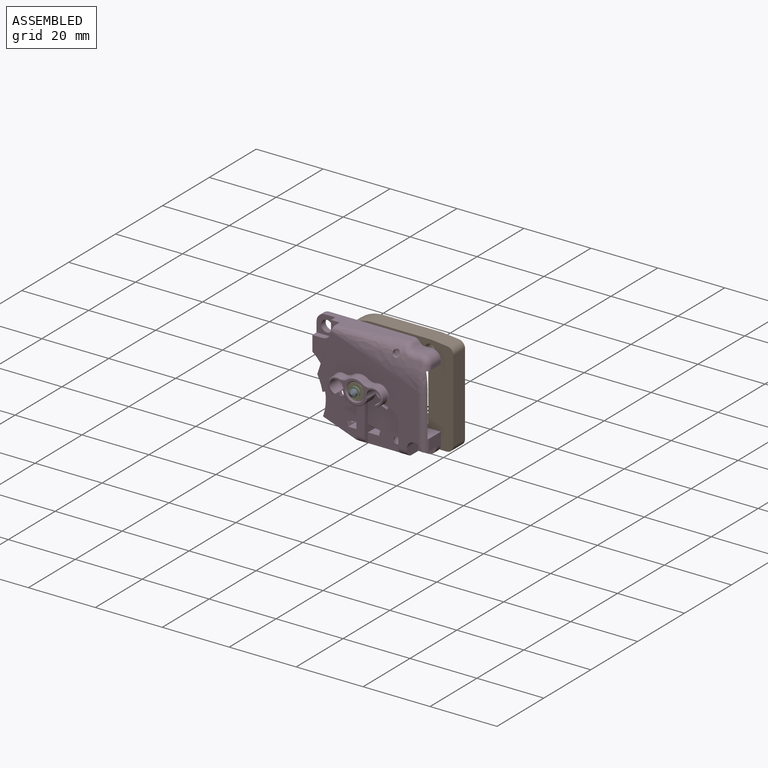
[diagram: assembled view]
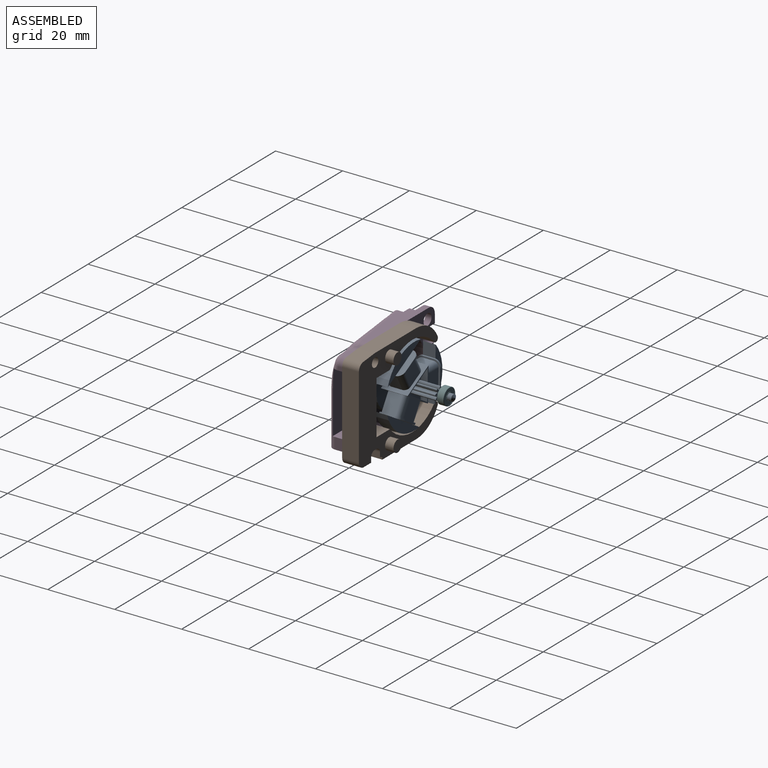
[diagram: assembled view, second angle]
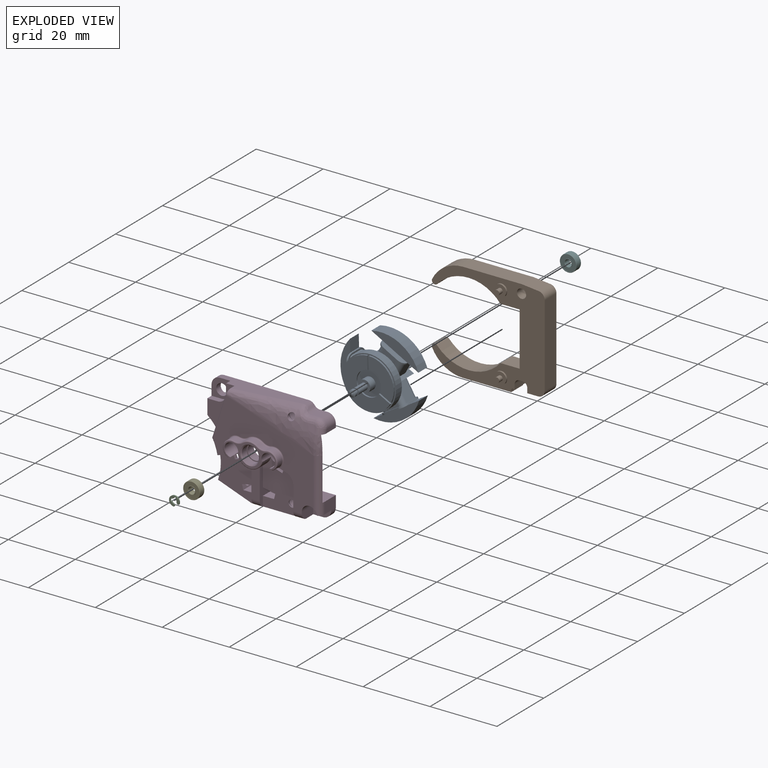
[diagram: exploded view]
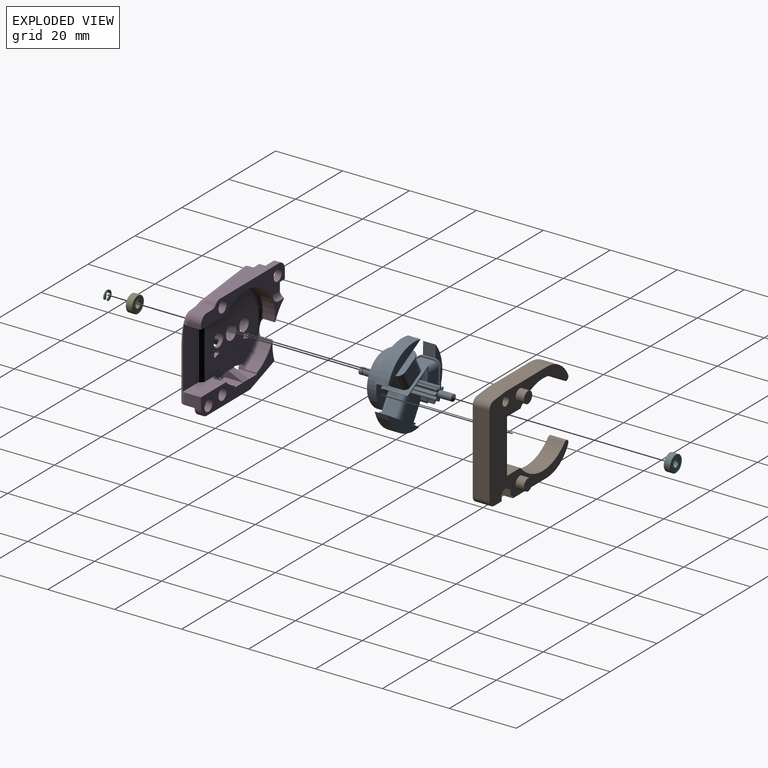
[diagram: exploded view, second angle]
ASSEMBLY  parts=6 mates=5
PART A: 141 faces, bbox 24x28.9x23.4 mm
  f0: cylinder r=1mm len=3.8mm, axis (0,1,0), area 23.9mm2, adj f65,f137
  f1: plane 10.2x8mm, normal (0,0,1), area 35.3mm2, adj f69,f108,f110,f111,f112,f113,f114,f115
  f2: plane 3.75x3.22mm, normal (0.87,0,0.5), area 13.9mm2, adj f4,f5,f6,f12,f13,f14
  f3: plane 3.75x3.22mm, normal (0.87,0,0.5), area 13.9mm2, adj f4,f5,f6,f8,f9,f10
  f4: plane 13.86x8.25mm, normal (0,1,0), area 33.5mm2, adj f2,f3,f6,f7
  f5: plane 13.86x8.25mm, normal (0,-1,0), area 33.5mm2, adj f2,f3,f6,f25
  f6: cylinder r=12mm len=13.86mm, axis (0,1,0), area 65.7mm2, adj f2,f3,f4,f5
  f7: plane 7.43x4.29mm, normal (-0.87,0,-0.5), area 13.8mm2, adj f4,f10,f11,f12
  f8: cylinder r=2mm len=2mm, axis (0.87,0,0.5), area 1.6mm2, adj f3,f9,f15,f16,f25
  f9: plane 3.35x0.43mm, normal (0.5,0,-0.87), area 1.7mm2, adj f3,f8,f10,f16
  f10: cylinder r=2mm len=2mm, axis (0.87,0,0.5), area 1.6mm2, adj f3,f7,f9,f11,f16
  f11: plane 4.23x2.73mm, normal (0,1,0), area 2.3mm2, adj f7,f10,f12,f16
  f12: cylinder r=2mm len=2mm, axis (0.87,0,0.5), area 1.6mm2, adj f2,f7,f11,f13,f16
  f13: plane 3.35x0.43mm, normal (-0.5,0,0.87), area 1.7mm2, adj f2,f12,f14,f16
  f14: cylinder r=2mm len=2mm, axis (0.87,0,0.5), area 1.6mm2, adj f2,f13,f15,f16,f25
  f15: plane 4.23x2.73mm, normal (0,-1,0), area 2.3mm2, adj f8,f14,f16,f25
  f16: plane 7.45x7.35mm, normal (0.87,0,0.5), area 13.4mm2, adj f8,f9,f10,f11,f12,f13,f14,f15
  f17: cylinder r=1.5mm len=5.51mm, axis (0.87,0,0.5), area 13mm2, adj f16,f18,f24,f111
  f18: plane 7.06x6.73mm, normal (0,1,0), area 25.3mm2, adj f16,f17,f19,f111
  f19: cylinder r=1.5mm len=5.51mm, axis (0.87,0,0.5), area 13mm2, adj f16,f18,f20,f111
  f20: plane 4.76x3.35mm, normal (-0.5,0,0.87), area 18.4mm2, adj f16,f19,f21,f111
  f21: cylinder r=1.5mm len=5.51mm, axis (0.87,0,0.5), area 13mm2, adj f16,f20,f22,f111
  f22: plane 7.06x6.73mm, normal (0,-1,0), area 25.3mm2, adj f16,f21,f23,f111
  f23: cylinder r=1.5mm len=5.51mm, axis (0.87,0,0.5), area 13mm2, adj f16,f22,f24,f111
  f24: plane 4.76x3.35mm, normal (0.5,0,-0.87), area 18.4mm2, adj f16,f17,f23,f111
  f25: plane 7.43x4.29mm, normal (-0.87,0,-0.5), area 13.8mm2, adj f5,f8,f14,f15
  f26: plane 11.03x7.25mm, normal (0,-1,0), area 43.2mm2, adj f27,f28,f29,f30
  f27: plane 3.88x0.5mm, normal (0,0,1), area 1.9mm2, adj f26,f28,f30,f67
  f28: cylinder r=7.5mm len=11.03mm, axis (0,1,0), area 7.6mm2, adj f26,f27,f29,f67
  f29: plane 3.36x1.94mm, normal (-0.87,0,0.5), area 1.9mm2, adj f26,f28,f30,f67
  f30: cylinder r=3.62mm len=5.21mm, axis (0,1,0), area 3.5mm2, adj f26,f27,f29,f67
  f31: plane 11.03x7.25mm, normal (0,-1,0), area 43.2mm2, adj f32,f33,f34,f35
  f32: plane 3.36x1.94mm, normal (-0.87,0,-0.5), area 1.9mm2, adj f31,f33,f35,f67
  f33: cylinder r=7.5mm len=11.03mm, axis (0,1,0), area 7.6mm2, adj f31,f32,f34,f67
  f34: plane 3.88x0.5mm, normal (0,0,-1), area 1.9mm2, adj f31,f33,f35,f67
  f35: cylinder r=3.62mm len=5.21mm, axis (0,1,0), area 3.5mm2, adj f31,f32,f34,f67
  f36: plane 12.73x5.48mm, normal (0,-1,0), area 43.2mm2, adj f37,f38,f39,f40
  f37: plane 3.36x1.94mm, normal (0.87,0,-0.5), area 1.9mm2, adj f36,f38,f40,f67
  f38: cylinder r=7.5mm len=12.73mm, axis (0,1,0), area 7.6mm2, adj f36,f37,f39,f67
  f39: plane 3.36x1.94mm, normal (0.87,0,0.5), area 1.9mm2, adj f36,f38,f40,f67
  f40: cylinder r=3.62mm len=6.01mm, axis (0,1,0), area 3.5mm2, adj f36,f37,f39,f67
  f41: plane 3.75x3.22mm, normal (-0.87,0,0.5), area 13.9mm2, adj f43,f44,f45,f51,f52,f53
  f42: plane 3.75x3.22mm, normal (-0.87,0,0.5), area 13.9mm2, adj f43,f44,f45,f47,f48,f49
  f43: plane 13.86x8.25mm, normal (0,1,0), area 33.5mm2, adj f41,f42,f45,f46
  f44: plane 13.86x8.25mm, normal (0,-1,0), area 33.5mm2, adj f41,f42,f45,f64
  f45: cylinder r=12mm len=13.86mm, axis (0,1,0), area 65.7mm2, adj f41,f42,f43,f44
  f46: plane 7.43x4.29mm, normal (0.87,0,-0.5), area 13.8mm2, adj f43,f49,f50,f51
  f47: cylinder r=2mm len=2mm, axis (-0.87,0,0.5), area 1.6mm2, adj f42,f48,f54,f55,f64
  f48: plane 3.35x0.43mm, normal (0.5,0,0.87), area 1.7mm2, adj f42,f47,f49,f55
  f49: cylinder r=2mm len=2mm, axis (-0.87,0,0.5), area 1.6mm2, adj f42,f46,f48,f50,f55
  f50: plane 4.23x2.73mm, normal (0,1,0), area 2.3mm2, adj f46,f49,f51,f55
  f51: cylinder r=2mm len=2mm, axis (-0.87,0,0.5), area 1.6mm2, adj f41,f46,f50,f52,f55
  f52: plane 3.35x0.43mm, normal (-0.5,0,-0.87), area 1.7mm2, adj f41,f51,f53,f55
  f53: cylinder r=2mm len=2mm, axis (-0.87,0,0.5), area 1.6mm2, adj f41,f52,f54,f55,f64
  f54: plane 4.23x2.73mm, normal (0,-1,0), area 2.3mm2, adj f47,f53,f55,f64
  f55: plane 7.45x7.35mm, normal (-0.87,0,0.5), area 13.4mm2, adj f47,f48,f49,f50,f51,f52,f53,f54
  f56: cylinder r=1.5mm len=5.51mm, axis (-0.87,0,0.5), area 13mm2, adj f55,f57,f63,f110
  f57: plane 7.06x6.73mm, normal (0,1,0), area 25.3mm2, adj f55,f56,f58,f110
  f58: cylinder r=1.5mm len=5.51mm, axis (-0.87,0,0.5), area 13mm2, adj f55,f57,f59,f110
  f59: plane 4.76x3.35mm, normal (-0.5,0,-0.87), area 18.4mm2, adj f55,f58,f60,f110
  f60: cylinder r=1.5mm len=5.51mm, axis (-0.87,0,0.5), area 13mm2, adj f55,f59,f61,f110
  f61: plane 7.06x6.73mm, normal (0,-1,0), area 25.3mm2, adj f55,f60,f62,f110
  f62: cylinder r=1.5mm len=5.51mm, axis (-0.87,0,0.5), area 13mm2, adj f55,f61,f63,f110
  f63: plane 4.76x3.35mm, normal (0.5,0,0.87), area 18.4mm2, adj f55,f56,f62,f110
  f64: plane 7.43x4.29mm, normal (0.87,0,-0.5), area 13.8mm2, adj f44,f47,f53,f54
  f65: plane 3.55x3.55mm, normal (0,-1,0), area 6.8mm2, adj f0,f66
  f66: cylinder r=1.78mm len=3.55mm, axis (0,1,0), area 25.7mm2, adj f65,f67
  f67: plane 15.7x15.7mm, normal (0,-1,0), area 54.1mm2, adj f27,f28,f29,f30,f32,f33,f34,f35
  f68: cylinder r=7.85mm len=15.7mm, axis (0,1,0), area 123.3mm2, adj f67,f69
  f69: plane 15.7x15.7mm, normal (0,1,0), area 148.5mm2, adj f1,f68,f110,f111
  f70: cone r=1mm half-angle=60deg, axis (0,-1,0), area 3.6mm2, adj f71
  f71: cylinder r=1mm len=4.12mm, axis (0,-1,0), area 25.9mm2, adj f70,f72
  f72: plane 3.78x3.78mm, normal (0,1,0), area 5.3mm2, adj f71,f73,f74,f75,f76,f77,f78,f79
  f73: plane 7.5x0.21mm, normal (0.71,0,0.71), area 2.3mm2, adj f72,f74,f104,f109
  f74: cylinder r=1mm len=7.5mm, axis (0,-1,0), area 6.3mm2, adj f72,f73,f75,f109
  f75: cylinder r=2mm len=7.5mm, axis (0,-1,0), area 1.9mm2, adj f72,f74,f76,f109
  f76: cylinder r=1mm len=7.5mm, axis (0,-1,0), area 6.3mm2, adj f72,f75,f77,f109
  f77: plane 7.5x0.3mm, normal (0,0,1), area 2.2mm2, adj f72,f76,f78,f109
  f78: cylinder r=1mm len=7.5mm, axis (0,-1,0), area 6.3mm2, adj f72,f77,f79,f109
  f79: cylinder r=2mm len=7.5mm, axis (0,-1,0), area 1.9mm2, adj f72,f78,f80,f109
  f80: cylinder r=1mm len=7.5mm, axis (0,-1,0), area 6.3mm2, adj f72,f79,f81,f109
  f81: plane 7.5x0.21mm, normal (-0.71,0,0.71), area 2.3mm2, adj f72,f80,f82,f109
  f82: cylinder r=1mm len=7.5mm, axis (0,-1,0), area 6.3mm2, adj f72,f81,f83,f109
  f83: cylinder r=2mm len=7.5mm, axis (0,-1,0), area 1.9mm2, adj f72,f82,f84,f109
  f84: cylinder r=1mm len=7.5mm, axis (0,-1,0), area 6.3mm2, adj f72,f83,f85,f109
  f85: plane 7.5x0.3mm, normal (-1,0,0), area 2.2mm2, adj f72,f84,f86,f109
  f86: cylinder r=1mm len=7.5mm, axis (0,-1,0), area 6.3mm2, adj f72,f85,f87,f109
  f87: cylinder r=2mm len=7.5mm, axis (0,-1,0), area 1.9mm2, adj f72,f86,f88,f109
  f88: cylinder r=1mm len=7.5mm, axis (0,-1,0), area 6.3mm2, adj f72,f87,f89,f109
  f89: plane 7.5x0.21mm, normal (-0.71,0,-0.71), area 2.3mm2, adj f72,f88,f90,f109
  f90: cylinder r=1mm len=7.5mm, axis (0,-1,0), area 6.3mm2, adj f72,f89,f91,f109
  f91: cylinder r=2mm len=7.5mm, axis (0,-1,0), area 1.9mm2, adj f72,f90,f92,f109
  f92: cylinder r=1mm len=7.5mm, axis (0,-1,0), area 6.3mm2, adj f72,f91,f93,f109
  f93: plane 7.5x0.3mm, normal (0,0,-1), area 2.2mm2, adj f72,f92,f94,f109
  f94: cylinder r=1mm len=7.5mm, axis (0,-1,0), area 6.3mm2, adj f72,f93,f95,f109
  f95: cylinder r=2mm len=7.5mm, axis (0,-1,0), area 1.9mm2, adj f72,f94,f96,f109
  f96: cylinder r=1mm len=7.5mm, axis (0,-1,0), area 6.3mm2, adj f72,f95,f97,f109
  f97: plane 7.5x0.21mm, normal (0.71,0,-0.71), area 2.3mm2, adj f72,f96,f98,f109
  f98: cylinder r=1mm len=7.5mm, axis (0,-1,0), area 6.3mm2, adj f72,f97,f99,f109
  f99: cylinder r=2mm len=7.5mm, axis (0,-1,0), area 1.9mm2, adj f72,f98,f100,f109
  f100: cylinder r=1mm len=7.5mm, axis (0,-1,0), area 6.3mm2, adj f72,f99,f101,f109
  f101: plane 7.5x0.3mm, normal (1,0,0), area 2.2mm2, adj f72,f100,f102,f109
  f102: cylinder r=1mm len=7.5mm, axis (0,-1,0), area 6.3mm2, adj f72,f101,f103,f109
  f103: cylinder r=2mm len=7.5mm, axis (0,-1,0), area 1.9mm2, adj f72,f102,f104,f109
  f104: cylinder r=1mm len=7.5mm, axis (0,-1,0), area 6.3mm2, adj f72,f73,f103,f109
  f105: plane 7.93x4.58mm, normal (0.87,0,0.5), area 18.3mm2, adj f106,f107,f108,f109
  f106: plane 7.93x4.58mm, normal (-0.87,0,0.5), area 18.3mm2, adj f105,f107,f108,f109
  f107: plane 9.16x2mm, normal (0,0,-1), area 18.3mm2, adj f105,f106,f108,f109
  f108: plane 10.2x8.83mm, normal (0,1,0), area 8.7mm2, adj f1,f105,f106,f107,f110,f111
  f109: plane 9.16x7.93mm, normal (0,1,0), area 27.9mm2, adj f73,f74,f75,f76,f77,f78,f79,f80
  f110: plane 8.83x8mm, normal (0.87,0,-0.5), area 35.3mm2, adj f1,f56,f57,f58,f59,f60,f61,f62
  f111: plane 8.83x8mm, normal (-0.87,0,-0.5), area 35.3mm2, adj f1,f17,f18,f19,f20,f21,f22,f23
  f112: plane 5.5x3.35mm, normal (-1,0,0), area 18.4mm2, adj f1,f113,f119,f135
  f113: cylinder r=1.5mm len=5.5mm, axis (0,0,-1), area 13mm2, adj f1,f112,f114,f135
  f114: plane 5.5x4.6mm, normal (0,-1,0), area 25.3mm2, adj f1,f113,f115,f135
  f115: cylinder r=1.5mm len=5.5mm, axis (0,0,-1), area 13mm2, adj f1,f114,f116,f135
  f116: plane 5.5x3.35mm, normal (1,0,0), area 18.4mm2, adj f1,f115,f117,f135
  f117: cylinder r=1.5mm len=5.5mm, axis (0,0,-1), area 13mm2, adj f1,f116,f118,f135
  f118: plane 5.5x4.6mm, normal (0,1,0), area 25.3mm2, adj f1,f117,f119,f135
  f119: cylinder r=1.5mm len=5.5mm, axis (0,0,-1), area 13mm2, adj f1,f112,f118,f135
  f120: plane 16x3.06mm, normal (0,1,0), area 33.5mm2, adj f121,f123,f124,f125
  f121: cylinder r=12mm len=16mm, axis (0,1,0), area 65.7mm2, adj f120,f122,f123,f125
  f122: plane 16x3.06mm, normal (0,-1,0), area 33.5mm2, adj f121,f123,f125,f126
  f123: plane 3.75x3.71mm, normal (0,0,-1), area 13.9mm2, adj f120,f121,f122,f127,f128,f129
  f124: plane 8.58x1.8mm, normal (0,0,1), area 13.8mm2, adj f120,f129,f130,f131
  f125: plane 3.75x3.71mm, normal (0,0,-1), area 13.9mm2, adj f120,f121,f122,f131,f132,f133
  f126: plane 8.58x1.8mm, normal (0,0,1), area 13.8mm2, adj f122,f127,f133,f134
  f127: cylinder r=2mm len=2mm, axis (0,0,-1), area 1.6mm2, adj f123,f126,f128,f134,f135
  f128: plane 3.35x0.5mm, normal (1,0,0), area 1.7mm2, adj f123,f127,f129,f135
  f129: cylinder r=2mm len=2mm, axis (0,0,-1), area 1.6mm2, adj f123,f124,f128,f130,f135
  f130: plane 4.6x0.5mm, normal (0,1,0), area 2.3mm2, adj f124,f129,f131,f135
  f131: cylinder r=2mm len=2mm, axis (0,0,-1), area 1.6mm2, adj f124,f125,f130,f132,f135
  f132: plane 3.35x0.5mm, normal (-1,0,0), area 1.7mm2, adj f125,f131,f133,f135
  f133: cylinder r=2mm len=2mm, axis (0,0,-1), area 1.6mm2, adj f125,f126,f132,f134,f135
  f134: plane 4.6x0.5mm, normal (0,-1,0), area 2.3mm2, adj f126,f127,f133,f135
  f135: plane 8.6x7.35mm, normal (0,0,-1), area 13.4mm2, adj f112,f113,f114,f115,f116,f117,f118,f119
  f136: plane 2x2mm, normal (0,1,0), area 1.4mm2, adj f138,f140
  f137: plane 2x2mm, normal (0,-1,0), area 1.4mm2, adj f0,f138
  f138: cylinder r=0.75mm len=1.5mm, axis (0,1,0), area 2.4mm2, adj f136,f137
  f139: cone r=1mm half-angle=60deg, axis (0,1,0), area 3.6mm2, adj f140
  f140: cylinder r=1mm len=2mm, axis (0,1,0), area 6.1mm2, adj f136,f139
PART B: 40 faces, bbox 33.7x9.5x30 mm
  f0: plane 5.73x5mm, normal (0,0,-1), area 28.6mm2, adj f1,f24,f26,f27
  f1: plane 16x5mm, normal (-1,0,0), area 80mm2, adj f0,f2,f26,f27
  f2: plane 5.73x5mm, normal (0,0,1), area 28.6mm2, adj f1,f3,f26,f27
  f3: cylinder r=12.48mm len=18.91mm, axis (0,1,0), area 107.3mm2, adj f2,f4,f26,f27
  f4: cylinder r=0.9mm len=5mm, axis (0,1,0), area 12.9mm2, adj f3,f5,f26,f27
  f5: cylinder r=10.24mm len=9.18mm, axis (0,1,0), area 56.9mm2, adj f4,f6,f26,f27
  f6: plane 14.43x5mm, normal (0,0,-1), area 72.2mm2, adj f5,f7,f26,f27
  f7: plane 5x0.5mm, normal (1,0,0), area 2.5mm2, adj f6,f8,f26,f27
  f8: cylinder r=0.5mm len=5mm, axis (0,1,0), area 3.9mm2, adj f7,f9,f26,f27
  f9: plane 5x0.5mm, normal (0,0,-1), area 2.5mm2, adj f8,f10,f26,f27
  f10: plane 5x1.35mm, normal (1,0,0), area 6.8mm2, adj f9,f11,f26,f27
  f11: cylinder r=1.5mm len=5mm, axis (0,1,0), area 11.8mm2, adj f10,f12,f26,f27
  f12: plane 5x0.8mm, normal (0,0,-1), area 4mm2, adj f11,f13,f26,f27
  f13: cylinder r=1.5mm len=5mm, axis (0,1,0), area 11.8mm2, adj f12,f14,f26,f27
  f14: plane 5x1.35mm, normal (-1,0,0), area 6.8mm2, adj f13,f15,f26,f27
  f15: plane 5x3.2mm, normal (0,0,-1), area 16mm2, adj f14,f16,f26,f27
  f16: cylinder r=2mm len=5mm, axis (0,1,0), area 15.7mm2, adj f15,f17,f26,f27
  f17: plane 24.5x5mm, normal (1,0,0), area 122.5mm2, adj f16,f18,f26,f27
  f18: cylinder r=2mm len=5mm, axis (0,1,0), area 14.7mm2, adj f17,f19,f26,f27
  f19: plane 5x4.87mm, normal (0.1,0,0.99), area 24.5mm2, adj f18,f20,f26,f27
  f20: cylinder r=2.6mm len=5mm, axis (0,1,0), area 1.3mm2, adj f19,f21,f26,f27
  f21: plane 17.5x5mm, normal (0,0,1), area 87.5mm2, adj f20,f22,f26,f27
  f22: cylinder r=10.24mm len=9.18mm, axis (0,1,0), area 56.9mm2, adj f21,f23,f26,f27
  f23: cylinder r=0.9mm len=5mm, axis (0,1,0), area 12.9mm2, adj f22,f24,f26,f27
  f24: cylinder r=12.48mm len=18.91mm, axis (0,1,0), area 107.3mm2, adj f0,f23,f26,f27
  f25: cylinder r=1.38mm len=5mm, axis (0,1,0), area 43.2mm2, adj f26,f27
  f26: plane 33.7x30mm, normal (0,-1,0), area 392mm2, adj f0,f1,f2,f3,f4,f5,f6,f7
  f27: plane 33.7x30mm, normal (0,1,0), area 392mm2, adj f0,f1,f2,f3,f4,f5,f6,f7
  f28: plane 3.5x3.5mm, normal (0,1,0), area 9.6mm2, adj f29
  f29: cylinder r=1.75mm len=3.5mm, axis (0,1,0), area 27.5mm2, adj f27,f28
  f30: cylinder r=1.75mm len=3.5mm, axis (0,1,0), area 5.5mm2, adj f26,f31
  f31: plane 3.5x3.5mm, normal (0,-1,0), area 7.9mm2, adj f30,f36
  f32: plane 3.5x3.5mm, normal (0,1,0), area 9.6mm2, adj f33
  f33: cylinder r=1.75mm len=3.5mm, axis (0,1,0), area 27.5mm2, adj f27,f32
  f34: cylinder r=1.75mm len=3.5mm, axis (0,1,0), area 5.5mm2, adj f26,f35
  f35: plane 3.5x3.5mm, normal (0,-1,0), area 7.9mm2, adj f34,f38
  f36: cylinder r=0.75mm len=1.5mm, axis (0,1,0), area 7.1mm2, adj f31,f37
  f37: plane 1.5x1.5mm, normal (0,-1,0), area 1.8mm2, adj f36
  f38: cylinder r=0.75mm len=1.5mm, axis (0,1,0), area 7.1mm2, adj f35,f39
  f39: plane 1.5x1.5mm, normal (0,-1,0), area 1.8mm2, adj f38
PART C: 10 faces, bbox 3x2.7x0.4 mm
  f0: cylinder r=0.48mm len=0.79mm, axis (0,0,-1), area 0.4mm2, adj f1,f7,f8,f9
  f1: cylinder r=1.5mm len=3mm, axis (0,0,-1), area 3.1mm2, adj f0,f2,f8,f9
  f2: cylinder r=0.48mm len=0.79mm, axis (0,0,-1), area 0.4mm2, adj f1,f3,f8,f9
  f3: cylinder r=0.75mm len=0.54mm, axis (0,0,-1), area 0.2mm2, adj f2,f4,f8,f9
  f4: cylinder r=0.41mm len=0.78mm, axis (0,0,-1), area 0.6mm2, adj f3,f5,f8,f9
  f5: cylinder r=0.75mm len=0.52mm, axis (0,0,-1), area 0.2mm2, adj f4,f6,f8,f9
  f6: cylinder r=0.41mm len=0.78mm, axis (0,0,-1), area 0.6mm2, adj f5,f7,f8,f9
  f7: cylinder r=0.75mm len=0.54mm, axis (0,0,-1), area 0.2mm2, adj f0,f6,f8,f9
  f8: plane 3x2.74mm, normal (0,0,1), area 3.8mm2, adj f0,f1,f2,f3,f4,f5,f6,f7
  f9: plane 3x2.74mm, normal (0,0,-1), area 3.8mm2, adj f0,f1,f2,f3,f4,f5,f6,f7
PART D: 115 faces, bbox 37.3x9.7x30 mm
  f0: plane 22.9x21.96mm, normal (0,1,0), area 380.1mm2, adj f30,f32,f35,f36,f49,f50,f63,f97
  f1: plane 14x10mm, normal (0,-1,0), area 108.8mm2, adj f7,f36,f37,f38,f50,f54,f55,f74
  f2: plane 14x10.89mm, normal (0,-1,0), area 100.1mm2, adj f6,f19,f33,f34,f35,f49,f53,f54
  f3: plane 9.46x2.5mm, normal (0,-1,0), area 23.3mm2, adj f35,f36,f54,f107
  f4: plane 29.97x25.87mm, normal (0,-1,0), area 285.3mm2, adj f44,f45,f53,f55,f65,f73,f74,f75
  f5: plane 18.5x4.8mm, normal (0,0,-1), area 80.4mm2, adj f15,f19,f20,f43,f44,f107
  f6: cylinder r=13.87mm len=15.64mm, axis (0,1,0), area 72.6mm2, adj f2,f15,f16,f18,f19,f40,f41,f47
  f7: cylinder r=1.05mm len=2.1mm, axis (0,1,0), area 2mm2, adj f1,f61
  f8: plane 4.8x3.4mm, normal (1,0,0), area 16.3mm2, adj f15,f20,f32,f46,f73
  f9: plane 25.37x5.4mm, normal (0,0,1), area 94mm2, adj f12,f16,f24,f42,f47,f65,f66,f94
  f10: plane 3.1x1.8mm, normal (0,0,1), area 5.6mm2, adj f11,f18,f42,f47
  f11: cylinder r=2.5mm len=2.5mm, axis (0,-1,0), area 7.1mm2, adj f10,f12,f42,f47
  f12: plane 3.03x1.8mm, normal (-1,0,0), area 5.5mm2, adj f9,f11,f42,f47
  f13: cylinder r=1.7mm len=3.4mm, axis (0,1,0), area 20.3mm2, adj f16,f42
  f14: cylinder r=1.7mm len=3.4mm, axis (0,1,0), area 20.3mm2, adj f15,f43
  f15: plane 31.34x9.8mm, normal (0,1,0), area 111.9mm2, adj f5,f6,f8,f14,f19,f20,f26,f32
  f16: plane 35.8x15.35mm, normal (0,1,0), area 134.5mm2, adj f6,f9,f13,f17,f18,f21,f22,f23
  f17: plane 4.07x1.1mm, normal (1,0,0), area 4.3mm2, adj f16,f21,f30,f72
  f18: plane 7.5x3.7mm, normal (-1,0,0), area 15.9mm2, adj f6,f10,f16,f24,f28,f42,f47,f111
  f19: plane 10.51x5.67mm, normal (-0.34,0,-0.94), area 60.4mm2, adj f2,f5,f6,f15,f107
  f20: cylinder r=2.5mm len=2.5mm, axis (0,1,0), area 7.5mm2, adj f5,f8,f15,f43
  f21: cylinder r=2.5mm len=3.73mm, axis (0,1,0), area 14.4mm2, adj f16,f17,f22,f71
  f22: plane 3.76x2.2mm, normal (0,0,1), area 8.1mm2, adj f16,f21,f68,f70
  f23: plane 3.09x0.35mm, normal (0.75,0,0.66), area 1.3mm2, adj f16,f66,f67,f68
  f24: cylinder r=2.5mm len=2.5mm, axis (0,1,0), area 7.5mm2, adj f9,f16,f18,f42
  f25: cylinder r=1.05mm len=2.1mm, axis (0,1,0), area 3.9mm2, adj f62,f65
  f26: cylinder r=1.7mm len=4.24mm, axis (0,1,0), area 45.3mm2, adj f15,f61
  f27: cylinder r=1.7mm len=4.24mm, axis (0,1,0), area 45.3mm2, adj f16,f62
  f28: plane 3.62x2mm, normal (0,1,0), area 6.8mm2, adj f18,f111,f112,f113
  f29: plane 18.65x7.12mm, normal (0,1,0), area 120.8mm2, adj f30,f31,f32,f72,f73
  f30: plane 12.23x5.57mm, normal (0,0,-1), area 54.8mm2, adj f0,f16,f17,f29,f31,f40,f72,f110
  f31: plane 18.2x0.1mm, normal (1,0,0), area 1.8mm2, adj f29,f30,f32,f114
  f32: plane 12.17x5.5mm, normal (0,0,1), area 55mm2, adj f0,f8,f15,f29,f31,f39,f73,f109
  f33: plane 5.5x1.5mm, normal (0.97,0,0.24), area 3.9mm2, adj f2,f15,f34,f41,f97,f110
  f34: plane 5.5x3.35mm, normal (0,0,1), area 18.4mm2, adj f2,f15,f33,f35
  f35: plane 11.36x6.82mm, normal (-1,0,0), area 21.3mm2, adj f0,f2,f3,f15,f34,f54,f97,f107
  f36: plane 11.36x6.82mm, normal (1,0,0), area 21.3mm2, adj f0,f1,f3,f15,f37,f54,f106,f107
  f37: plane 5.5x3.35mm, normal (0,0,1), area 18.4mm2, adj f1,f15,f36,f38
  f38: plane 5.5x1.5mm, normal (-0.97,0,0.24), area 3.9mm2, adj f1,f15,f37,f39,f106,f109
  f39: cylinder r=12.5mm len=3.87mm, axis (0,1,0), area 15.7mm2, adj f15,f32,f38,f109
  f40: cylinder r=12.5mm len=21.07mm, axis (0,1,0), area 102.1mm2, adj f6,f16,f30,f110
  f41: cylinder r=12.5mm len=6.66mm, axis (0,1,0), area 32.1mm2, adj f6,f15,f33,f110
  f42: plane 5.6x5.53mm, normal (0,-1,0), area 19.2mm2, adj f9,f10,f11,f12,f13,f18,f24
  f43: plane 5.4x4.7mm, normal (0,-1,0), area 10.7mm2, adj f5,f14,f20,f44,f45,f46
  f44: plane 4.9x2.5mm, normal (1,0,0), area 11.4mm2, adj f4,f5,f43,f45,f107
  f45: cylinder r=2.2mm len=4.9mm, axis (0,-1,0), area 33.6mm2, adj f4,f43,f44,f46,f73
  f46: plane 4.63x1mm, normal (0,0,-1), area 4.1mm2, adj f8,f43,f45,f73
  f47: plane 14.08x8.18mm, normal (0,-1,0), area 43.2mm2, adj f6,f9,f10,f11,f12,f18,f48,f94
  f48: plane 13.87x4.44mm, normal (-0.95,0,0.3), area 40.4mm2, adj f6,f47,f91,f92,f93,f94
  f49: cylinder r=2.05mm len=4.9mm, axis (0,-1,0), area 53mm2, adj f0,f2,f53,f54,f60,f78,f79,f95
  f50: cylinder r=2.05mm len=4.9mm, axis (0,-1,0), area 53mm2, adj f0,f1,f54,f55,f60,f76,f77,f95
  f51: cylinder r=3mm len=2.58mm, axis (0,1,0), area 5.1mm2, adj f52,f59,f83,f88
  f52: cylinder r=2.65mm len=4.99mm, axis (0,1,0), area 14.7mm2, adj f51,f53,f84,f89
  f53: plane 5.84x3.93mm, normal (0.32,0,-0.95), area 10.2mm2, adj f2,f4,f6,f49,f52,f60,f78,f79
  f54: cylinder r=3.75mm len=7.29mm, axis (0,1,0), area 31.7mm2, adj f1,f2,f3,f35,f36,f49,f50,f95
  f55: plane 3.93x3.52mm, normal (-0.32,0,-0.95), area 7.1mm2, adj f1,f4,f50,f56,f60,f75,f76,f77
  f56: cylinder r=2.65mm len=4.99mm, axis (0,1,0), area 14.7mm2, adj f55,f57,f80,f85
  f57: cylinder r=3mm len=2.58mm, axis (0,1,0), area 5.1mm2, adj f56,f59,f81,f86
  f58: cylinder r=2.55mm len=5.1mm, axis (0,1,0), area 32mm2, adj f64,f96
  f59: cylinder r=3.75mm len=4.43mm, axis (0,1,0), area 9mm2, adj f51,f57,f82,f87
  f60: plane 15.7x6.9mm, normal (0,-1,0), area 19.5mm2, adj f49,f50,f53,f55,f85,f86,f87,f88
  f61: cone r=3.55mm half-angle=34deg, axis (0,1,0), area 10mm2, adj f7,f26
  f62: cone r=3.55mm half-angle=34deg, axis (0,1,0), area 10mm2, adj f25,f27
  f63: cylinder r=2.25mm len=4.5mm, axis (0,-1,0), area 36.8mm2, adj f0,f64
  f64: plane 5.1x5.1mm, normal (0,-1,0), area 4.5mm2, adj f58,f63
  f65: bspline ~26.2x10.94mm, area 167.3mm2, adj f4,f9,f25,f66,f67,f69,f70,f71
  f66: cylinder r=2mm len=2.59mm, axis (0,-1,0), area 4.2mm2, adj f9,f16,f23,f65,f67
  f67: bspline ~2.29x1.86mm, area 2.3mm2, adj f23,f65,f66,f69
  f68: cylinder r=2mm len=3.76mm, axis (0,1,0), area 5.8mm2, adj f16,f22,f23,f69
  f69: bspline ~3.4x2.71mm, area 6.9mm2, adj f65,f67,f68,f70
  f70: bspline ~6.47x2.39mm, area 5.4mm2, adj f22,f65,f69,f71
  f71: bspline ~3.12x3.09mm, area 6.9mm2, adj f21,f65,f70,f72
  f72: bspline ~7.59x3.14mm, area 15.4mm2, adj f17,f29,f30,f65,f71,f73
  f73: cylinder r=2mm len=16.16mm, axis (0,0,-1), area 40.7mm2, adj f4,f8,f29,f32,f45,f46,f72
  f74: plane 8.86x1.3mm, normal (-1,0,0), area 10.8mm2, adj f1,f4,f75,f107
  f75: cylinder r=3mm len=2.84mm, axis (0,-1,0), area 4.8mm2, adj f1,f4,f55,f74
  f76: plane 1.3x0.01mm, normal (-0.95,0,0.32), area 0mm2, adj f1,f50,f55,f77
  f77: plane 0.02x0.01mm, normal (0,1,0), area 0mm2, adj f50,f55,f76
  f78: plane 0.02x0.01mm, normal (0,1,0), area 0mm2, adj f49,f53,f79
  f79: plane 1.3x0.01mm, normal (0.95,0,0.32), area 0mm2, adj f2,f49,f53,f78
  f80: torus R=2.95mm, axis (0,-1,0), area 3.7mm2, adj f4,f55,f56,f81
  f81: torus R=2.7mm, axis (0,-1,0), area 1.2mm2, adj f4,f57,f80,f82
  f82: torus R=4.05mm, axis (0,-1,0), area 2.3mm2, adj f4,f59,f81,f83
  f83: torus R=2.7mm, axis (0,-1,0), area 1.2mm2, adj f4,f51,f82,f84
  f84: torus R=2.95mm, axis (0,-1,0), area 3.7mm2, adj f4,f52,f53,f83
  f85: torus R=2.35mm, axis (0,-1,0), area 3.6mm2, adj f55,f56,f60,f86
  f86: torus R=3.3mm, axis (0,-1,0), area 1.3mm2, adj f57,f60,f85,f87
  f87: torus R=3.45mm, axis (0,-1,0), area 2.2mm2, adj f59,f60,f86,f88
  f88: torus R=3.3mm, axis (0,-1,0), area 1.3mm2, adj f51,f60,f87,f89
  f89: torus R=2.35mm, axis (0,-1,0), area 3.6mm2, adj f52,f53,f60,f88
  f90: torus R=14.17mm, axis (0,-1,0), area 2.1mm2, adj f4,f6,f53,f91
  f91: cylinder r=0.3mm len=12.73mm, axis (-0.3,0,-0.95), area 6.2mm2, adj f4,f48,f90,f92
  f92: bspline ~1.5x0.71mm, area 0.3mm2, adj f48,f65,f91,f93
  f93: bspline ~1.11x1.04mm, area 0.3mm2, adj f48,f65,f92,f94
  f94: bspline ~3.14x0.51mm, area 0.9mm2, adj f9,f47,f48,f65,f93
  f95: torus R=3.45mm, axis (0,-1,0), area 5mm2, adj f49,f50,f54,f60
  f96: cone r=2.55mm half-angle=45deg, axis (0,-1,0), area 7.2mm2, adj f58,f60
  f97: plane 3.72x1.11mm, normal (0.21,0,-0.98), area 4.2mm2, adj f0,f2,f33,f35,f110
  f98: plane 1.23x1.1mm, normal (0.95,0,0.32), area 1.4mm2, adj f0,f2,f99,f101
  f99: plane 1.89x1.1mm, normal (-0.32,0,0.95), area 2.2mm2, adj f0,f2,f98,f100
  f100: plane 1.23x1.1mm, normal (-0.95,0,-0.32), area 1.4mm2, adj f0,f2,f99,f101
  f101: plane 1.89x1.1mm, normal (0.32,0,-0.95), area 2.2mm2, adj f0,f2,f98,f100
  f102: plane 1.89x1.1mm, normal (0.32,0,0.95), area 2.2mm2, adj f0,f1,f103,f105
  f103: plane 1.23x1.1mm, normal (-0.95,0,0.32), area 1.4mm2, adj f0,f1,f102,f104
  f104: plane 1.89x1.1mm, normal (-0.32,0,-0.95), area 2.2mm2, adj f0,f1,f103,f105
  f105: plane 1.23x1.1mm, normal (0.95,0,-0.32), area 1.4mm2, adj f0,f1,f102,f104
  f106: plane 3.72x1.11mm, normal (-0.21,0,-0.98), area 4.2mm2, adj f0,f1,f36,f38,f109
  f107: cylinder r=2mm len=15.95mm, axis (-1,0,0), area 23.5mm2, adj f1,f2,f3,f4,f5,f19,f35,f36
  f108: cone r=10mm half-angle=24.4deg, axis (0,1,0), area 12.2mm2, adj f0,f15,f35,f36
  f109: torus R=11.5mm, axis (0,-1,0), area 6mm2, adj f0,f32,f38,f39,f106
  f110: torus R=11.5mm, axis (0,-1,0), area 62.9mm2, adj f0,f6,f30,f33,f40,f41,f97
  f111: cylinder r=1.5mm len=2.62mm, axis (-1,0,0), area 6.2mm2, adj f16,f18,f28,f112
  f112: torus R=1mm, axis (0,-1,0), area 14.5mm2, adj f16,f28,f111,f113
  f113: cylinder r=1.5mm len=2.62mm, axis (1,0,0), area 6.1mm2, adj f6,f16,f18,f28,f112
  f114: plane 18.2x1mm, normal (0.71,0.71,0), area 25.7mm2, adj f0,f30,f31,f32
PART E: 16 faces, bbox 5.4x2x5.4 mm
  f0: cylinder r=1mm len=2mm, axis (0,-1,0), area 11.3mm2, adj f1,f15
  f1: torus R=1.1mm, axis (0,-1,0), area 1mm2, adj f0,f2
  f2: plane 2.5x2.5mm, normal (0,1,0), area 1.1mm2, adj f1,f3
  f3: cylinder r=1.25mm len=2.5mm, axis (0,-1,0), area 0.8mm2, adj f2,f4
  f4: plane 4.5x4.5mm, normal (0,1,0), area 11mm2, adj f3,f5
  f5: cylinder r=2.25mm len=4.5mm, axis (0,-1,0), area 1.4mm2, adj f4,f6
  f6: plane 4.8x4.8mm, normal (0,1,0), area 2.2mm2, adj f5,f7
  f7: torus R=2.4mm, axis (0,-1,0), area 2.4mm2, adj f6,f8
  f8: cylinder r=2.5mm len=5mm, axis (0,-1,0), area 28.3mm2, adj f7,f9
  f9: torus R=2.4mm, axis (0,-1,0), area 2.4mm2, adj f8,f10
  f10: plane 4.8x4.8mm, normal (0,-1,0), area 2.2mm2, adj f9,f11
  f11: cylinder r=2.25mm len=4.5mm, axis (0,-1,0), area 1.4mm2, adj f10,f12
  f12: plane 4.5x4.5mm, normal (0,-1,0), area 11mm2, adj f11,f13
  f13: cylinder r=1.25mm len=2.5mm, axis (0,-1,0), area 0.8mm2, adj f12,f14
  f14: plane 2.5x2.5mm, normal (0,-1,0), area 1.1mm2, adj f13,f15
  f15: torus R=1.1mm, axis (0,-1,0), area 1mm2, adj f0,f14
PART F: same geometry as E
PLACE A rot(axis=(0,1,0),148.5deg) t=(0,3.6,0)mm
PLACE B t=(0,2.5,0)mm
PLACE C rot(axis=(0.2,0.69,-0.69),157.8deg) t=(27.05,-9.1,13.23)mm
PLACE D at identity fixed
PLACE E t=(0,-8,0)mm
PLACE F rot(axis=(0,1,0),148.5deg) t=(0,15.01,0)mm
MATE revolute E.f0 <-> A.f0  axis (0,-1,0) through (0,-9,0)mm
MATE fastened C.f1 <-> A.f0  axis (0,1,0) through (0,-9.5,0)mm
MATE slider F.f0 <-> A.f70  axis (0,-1,0) through (0,15.01,0)mm
MATE fastened D.f25 <-> B.f29  axis (0,1,0) through (10,0,11.8)mm
MATE fastened E.f0 <-> D.f58  axis (0,1,0) through (0,-7,0)mm
